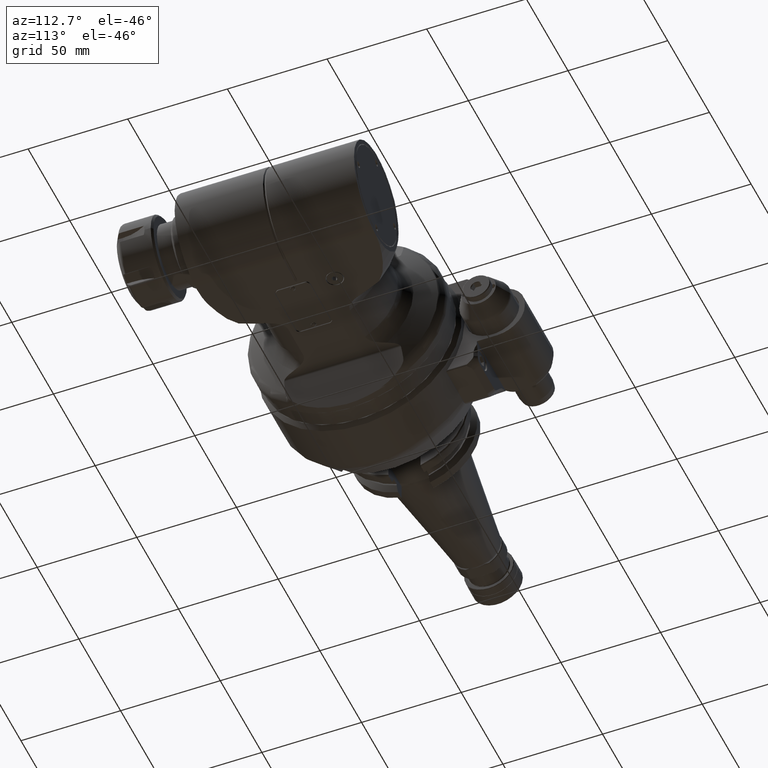
[diagram: clean part render]
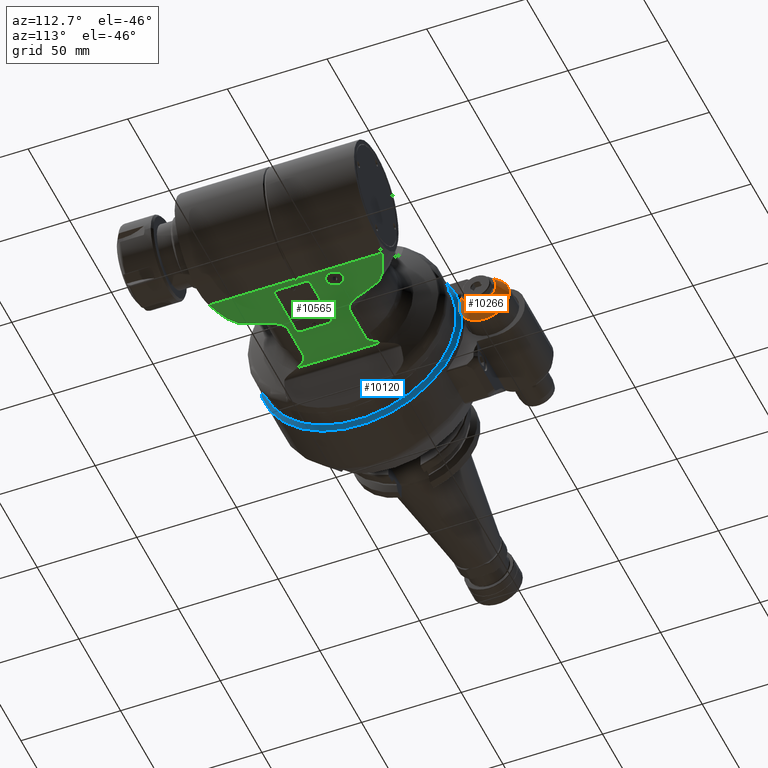
[diagram: same view with three faces highlighted in distinct colors, each labeled with its STEP entity id]
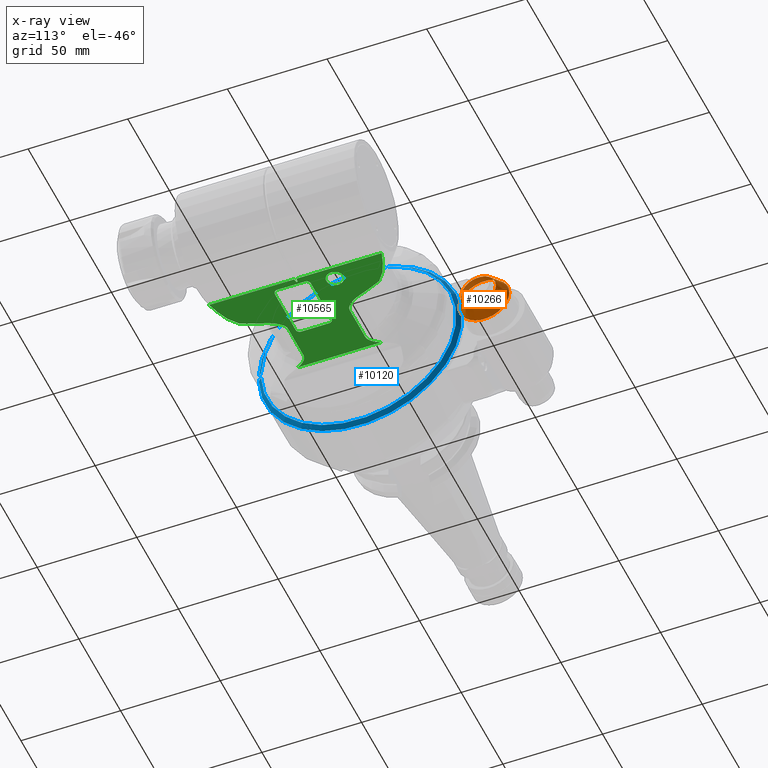
[diagram: x-ray of the same camera — body ghosted, the three highlighted faces saturated]
A machine part, auxiliary view with three faces highlighted in distinct colors.
The next image is the same camera in x-ray (body ghosted, the three faces saturated) — at least one of them is partly hidden behind the body in this view.
Their STEP definitions:

[orange] entity #10266 — the highlighted conical surface has half-angle 30 deg.
#688=CONICAL_SURFACE('',#11068,10.63397459622,0.523598775598299);
#944=FACE_OUTER_BOUND('',#1598,.T.);
#1598=EDGE_LOOP('',(#7572,#7573,#7574,#7575));
#2245=CIRCLE('',#11067,12.59807621135);
#2246=CIRCLE('',#11069,8.669872981078);
#3060=LINE('',#16064,#3718);
#3718=VECTOR('',#12654,10.63397459622);
#4428=VERTEX_POINT('',#16059);
#4429=VERTEX_POINT('',#16063);
#5596=EDGE_CURVE('',#4428,#4428,#2245,.T.);
#5597=EDGE_CURVE('',#4428,#4429,#3060,.T.);
#5598=EDGE_CURVE('',#4429,#4429,#2246,.T.);
#7572=ORIENTED_EDGE('',*,*,#5596,.F.);
#7573=ORIENTED_EDGE('',*,*,#5597,.T.);
#7574=ORIENTED_EDGE('',*,*,#5598,.F.);
#7575=ORIENTED_EDGE('',*,*,#5597,.F.);
#10266=ADVANCED_FACE('',(#944),#688,.T.);
#11067=AXIS2_PLACEMENT_3D('',#16061,#12650,#12651);
#11068=AXIS2_PLACEMENT_3D('',#16062,#12652,#12653);
#11069=AXIS2_PLACEMENT_3D('',#16065,#12655,#12656);
#12650=DIRECTION('center_axis',(-1.,0.,0.));
#12651=DIRECTION('ref_axis',(0.,1.,0.));
#12652=DIRECTION('center_axis',(-1.,0.,0.));
#12653=DIRECTION('ref_axis',(0.,-1.,0.));
#12654=DIRECTION('',(0.866025403784439,-0.5,6.12323399573676E-17));
#12655=DIRECTION('center_axis',(1.,0.,0.));
#12656=DIRECTION('ref_axis',(0.,-1.,0.));
#16059=CARTESIAN_POINT('',(-7.303847577293,77.59807621135,0.));
#16061=CARTESIAN_POINT('Origin',(-7.303847577293,65.,0.));
#16062=CARTESIAN_POINT('Origin',(-3.901923788647,65.,0.));
#16063=CARTESIAN_POINT('',(-0.5,73.66987298108,0.));
#16064=CARTESIAN_POINT('',(-3.901923788647,75.63397459622,-1.30228629514751E-15));
#16065=CARTESIAN_POINT('Origin',(-0.5,65.,0.));

[blue] entity #10120 — the highlighted conical surface has half-angle 45 deg.
#223=(
BOUNDED_CURVE()
B_SPLINE_CURVE(2,(#14953,#14954,#14955),.UNSPECIFIED.,.F.,.F.)
B_SPLINE_CURVE_WITH_KNOTS((3,3),(-0.564591459525085,-0.191486343836374),
 .UNSPECIFIED.)
CURVE()
GEOMETRIC_REPRESENTATION_ITEM()
RATIONAL_B_SPLINE_CURVE((1.00850972307627,1.00599717540352,1.00308912932))
REPRESENTATION_ITEM('')
);
#224=(
BOUNDED_CURVE()
B_SPLINE_CURVE(2,(#14958,#14959,#14960),.UNSPECIFIED.,.F.,.F.)
B_SPLINE_CURVE_WITH_KNOTS((3,3),(-5.67826879781681,-5.3051636821038),
 .UNSPECIFIED.)
CURVE()
GEOMETRIC_REPRESENTATION_ITEM()
RATIONAL_B_SPLINE_CURVE((1.00308912932,1.00599717540371,1.00850972307659))
REPRESENTATION_ITEM('')
);
#669=CONICAL_SURFACE('',#10820,50.,0.785398163397448);
#798=FACE_OUTER_BOUND('',#1431,.T.);
#1431=EDGE_LOOP('',(#6829,#6830,#6831,#6832));
#2139=CIRCLE('',#10815,51.);
#2144=CIRCLE('',#10821,49.);
#4190=VERTEX_POINT('',#14882);
#4191=VERTEX_POINT('',#14883);
#4197=VERTEX_POINT('',#14952);
#4198=VERTEX_POINT('',#14956);
#5227=EDGE_CURVE('',#4190,#4191,#2139,.T.);
#5237=EDGE_CURVE('',#4191,#4197,#223,.T.);
#5238=EDGE_CURVE('',#4198,#4197,#2144,.T.);
#5239=EDGE_CURVE('',#4198,#4190,#224,.T.);
#6829=ORIENTED_EDGE('',*,*,#5227,.T.);
#6830=ORIENTED_EDGE('',*,*,#5237,.T.);
#6831=ORIENTED_EDGE('',*,*,#5238,.F.);
#6832=ORIENTED_EDGE('',*,*,#5239,.T.);
#10120=ADVANCED_FACE('',(#798),#669,.T.);
#10815=AXIS2_PLACEMENT_3D('',#14884,#11951,#11952);
#10820=AXIS2_PLACEMENT_3D('',#14951,#11963,#11964);
#10821=AXIS2_PLACEMENT_3D('',#14957,#11965,#11966);
#11951=DIRECTION('center_axis',(1.,0.,0.));
#11952=DIRECTION('ref_axis',(0.,1.,0.));
#11963=DIRECTION('center_axis',(-1.,0.,0.));
#11964=DIRECTION('ref_axis',(0.,1.,0.));
#11965=DIRECTION('center_axis',(1.,0.,0.));
#11966=DIRECTION('ref_axis',(0.,1.,0.));
#14882=CARTESIAN_POINT('',(-14.,-50.9779364039,-1.5));
#14883=CARTESIAN_POINT('',(-14.,-50.9779364039,1.5));
#14884=CARTESIAN_POINT('Origin',(-14.,0.,0.));
#14951=CARTESIAN_POINT('Origin',(-13.,0.,0.));
#14952=CARTESIAN_POINT('',(-12.,-48.97703543499,1.5));
#14953=CARTESIAN_POINT('Ctrl Pts',(-14.0000000000021,-50.9779364038979,
1.5));
#14954=CARTESIAN_POINT('Ctrl Pts',(-12.9799819768498,-49.9574769100383,
1.5));
#14955=CARTESIAN_POINT('Ctrl Pts',(-12.0000000000021,-48.9770354349879,
1.5));
#14956=CARTESIAN_POINT('',(-12.,-48.97703543499,-1.5));
#14957=CARTESIAN_POINT('Origin',(-12.,0.,0.));
#14958=CARTESIAN_POINT('Ctrl Pts',(-12.0000000000021,-48.9770354349879,
-1.5));
#14959=CARTESIAN_POINT('Ctrl Pts',(-12.9799819769135,-49.957476910102,-1.5));
#14960=CARTESIAN_POINT('Ctrl Pts',(-14.0000000001347,-50.9779364040305,
-1.5));

[green] entity #10565 — the highlighted planar face has unit normal (0, -0, 1).
#195=FACE_BOUND('',#1928,.T.);
#196=FACE_BOUND('',#1929,.T.);
#344=(
BOUNDED_CURVE()
B_SPLINE_CURVE(2,(#55375,#55376,#55377),.UNSPECIFIED.,.F.,.F.)
B_SPLINE_CURVE_WITH_KNOTS((3,3),(2.12423992487181,3.54863226024136),
 .UNSPECIFIED.)
CURVE()
GEOMETRIC_REPRESENTATION_ITEM()
RATIONAL_B_SPLINE_CURVE((1.40912553974093,1.52349322192342,1.60728382082334))
REPRESENTATION_ITEM('')
);
#360=(
BOUNDED_CURVE()
B_SPLINE_CURVE(2,(#55586,#55587,#55588),.UNSPECIFIED.,.F.,.F.)
B_SPLINE_CURVE_WITH_KNOTS((3,3),(5.91107555423709,6.53511731414519),
 .UNSPECIFIED.)
CURVE()
GEOMETRIC_REPRESENTATION_ITEM()
RATIONAL_B_SPLINE_CURVE((2.83542029122629,2.86424913789588,2.87870857148112))
REPRESENTATION_ITEM('')
);
#361=(
BOUNDED_CURVE()
B_SPLINE_CURVE(2,(#55623,#55624,#55625),.UNSPECIFIED.,.F.,.F.)
B_SPLINE_CURVE_WITH_KNOTS((3,3),(-3.54863226084856,-2.12423992536637),
 .UNSPECIFIED.)
CURVE()
GEOMETRIC_REPRESENTATION_ITEM()
RATIONAL_B_SPLINE_CURVE((1.60728382094121,1.52349322203514,1.40912553984427))
REPRESENTATION_ITEM('')
);
#362=(
BOUNDED_CURVE()
B_SPLINE_CURVE(2,(#55627,#55628,#55629),.UNSPECIFIED.,.F.,.F.)
B_SPLINE_CURVE_WITH_KNOTS((3,3),(-1.06197990539254,-0.715484187069296),
 .UNSPECIFIED.)
CURVE()
GEOMETRIC_REPRESENTATION_ITEM()
RATIONAL_B_SPLINE_CURVE((1.1475996023373,1.1256416069715,1.10229961796947))
REPRESENTATION_ITEM('')
);
#363=(
BOUNDED_CURVE()
B_SPLINE_CURVE(2,(#55631,#55632,#55633),.UNSPECIFIED.,.F.,.F.)
B_SPLINE_CURVE_WITH_KNOTS((3,3),(-0.973706178312566,-0.526025533674463),
 .UNSPECIFIED.)
CURVE()
GEOMETRIC_REPRESENTATION_ITEM()
RATIONAL_B_SPLINE_CURVE((1.01555771134693,1.01265149021232,1.00912893726433))
REPRESENTATION_ITEM('')
);
#364=(
BOUNDED_CURVE()
B_SPLINE_CURVE(2,(#55635,#55636,#55637),.UNSPECIFIED.,.F.,.F.)
B_SPLINE_CURVE_WITH_KNOTS((3,3),(-0.576339078705369,-0.109398499019549),
 .UNSPECIFIED.)
CURVE()
GEOMETRIC_REPRESENTATION_ITEM()
RATIONAL_B_SPLINE_CURVE((1.00432743023104,1.00276695364821,1.00089450715669))
REPRESENTATION_ITEM('')
);
#365=(
BOUNDED_CURVE()
B_SPLINE_CURVE(2,(#55659,#55660,#55661),.UNSPECIFIED.,.F.,.F.)
B_SPLINE_CURVE_WITH_KNOTS((3,3),(-6.53511731431904,-5.91107555423699),
 .UNSPECIFIED.)
CURVE()
GEOMETRIC_REPRESENTATION_ITEM()
RATIONAL_B_SPLINE_CURVE((2.8787085714891,2.86424913790384,2.83542029122622))
REPRESENTATION_ITEM('')
);
#366=(
BOUNDED_CURVE()
B_SPLINE_CURVE(2,(#55667,#55668,#55669),.UNSPECIFIED.,.F.,.F.)
B_SPLINE_CURVE_WITH_KNOTS((3,3),(-5.71456249601488,-5.24762191632828),
 .UNSPECIFIED.)
CURVE()
GEOMETRIC_REPRESENTATION_ITEM()
RATIONAL_B_SPLINE_CURVE((1.000894507157,1.00276695364851,1.00432743023132))
REPRESENTATION_ITEM('')
);
#367=(
BOUNDED_CURVE()
B_SPLINE_CURVE(2,(#55671,#55672,#55673),.UNSPECIFIED.,.F.,.F.)
B_SPLINE_CURVE_WITH_KNOTS((3,3),(-5.64333001251078,-5.1956493678714),
 .UNSPECIFIED.)
CURVE()
GEOMETRIC_REPRESENTATION_ITEM()
RATIONAL_B_SPLINE_CURVE((1.00912893726492,1.01265149021289,1.01555771134748))
REPRESENTATION_ITEM('')
);
#368=(
BOUNDED_CURVE()
B_SPLINE_CURVE(2,(#55674,#55675,#55676),.UNSPECIFIED.,.F.,.F.)
B_SPLINE_CURVE_WITH_KNOTS((3,3),(-12.4032536025677,-12.0567578842427),
 .UNSPECIFIED.)
CURVE()
GEOMETRIC_REPRESENTATION_ITEM()
RATIONAL_B_SPLINE_CURVE((1.10229961797324,1.12564160697536,1.14759960234123))
REPRESENTATION_ITEM('')
);
#597=PLANE('',#11563);
#1243=FACE_OUTER_BOUND('',#1927,.T.);
#1927=EDGE_LOOP('',(#9097,#9098,#9099,#9100,#9101,#9102,#9103,#9104,#9105,
#9106,#9107,#9108,#9109,#9110,#9111,#9112,#9113,#9114,#9115,#9116,#9117,
#9118));
#1928=EDGE_LOOP('',(#9119));
#1929=EDGE_LOOP('',(#9120,#9121,#9122,#9123,#9124,#9125,#9126,#9127));
#2472=CIRCLE('',#11564,4.25);
#2473=CIRCLE('',#11565,2.);
#2474=CIRCLE('',#11566,2.);
#2475=CIRCLE('',#11567,2.);
#2476=CIRCLE('',#11568,2.);
#2808=B_SPLINE_CURVE_WITH_KNOTS('',3,(#55340,#55341,#55342,#55343,#55344,
#55345,#55346,#55347,#55348,#55349,#55350,#55351),.UNSPECIFIED.,.F.,.F.,
(4,2,2,2,2,4),(-2.93602857360432,-2.81022163538033,-2.66127008993984,-2.44574033067297,
-2.2302105714061,-2.12135907273542),.UNSPECIFIED.);
#2809=B_SPLINE_CURVE_WITH_KNOTS('',3,(#55359,#55360,#55361,#55362,#55363,
#55364,#55365,#55366,#55367,#55368,#55369,#55370,#55371,#55372),
 .UNSPECIFIED.,.F.,.F.,(4,2,2,2,2,2,4),(-3.9243895348401,-3.85672178121539,
-3.6417920743864,-3.42626231511953,-3.21073255585266,-3.06178101041217,
-2.93597407218818),.UNSPECIFIED.);
#2818=B_SPLINE_CURVE_WITH_KNOTS('',3,(#55593,#55594,#55595,#55596,#55597,
#55598,#55599,#55600,#55601,#55602,#55603,#55604),.UNSPECIFIED.,.F.,.F.,
(4,2,2,2,2,4),(2.12339512886387,2.32994567883634,2.51186335157645,2.69378102431655,
2.82337724519285,2.93597407218818),.UNSPECIFIED.);
#2819=B_SPLINE_CURVE_WITH_KNOTS('',3,(#55608,#55609,#55610,#55611,#55612,
#55613,#55614,#55615,#55616,#55617,#55618,#55619,#55620,#55621),
 .UNSPECIFIED.,.F.,.F.,(4,2,2,2,2,2,4),(2.93597407218818,3.04857089918351,
3.17816712005981,3.36008479279991,3.54200246554002,3.77852981809237,3.92307824233879),
 .UNSPECIFIED.);
#2820=B_SPLINE_CURVE_WITH_KNOTS('',3,(#55640,#55641,#55642,#55643,#55644,
#55645,#55646,#55647,#55648,#55649,#55650,#55651,#55652,#55653,#55654,#55655,
#55656,#55657),.UNSPECIFIED.,.F.,.F.,(4,2,2,2,2,2,2,2,4),(1.07151663617923,
1.09324356313691,1.11216026242346,1.11735936317211,1.12158336061007,1.12580735804802,
1.13100645879667,1.14992315808322,1.17165008504091),.UNSPECIFIED.);
#3344=LINE('',#55354,#4002);
#3351=LINE('',#55570,#4009);
#3356=LINE('',#55591,#4014);
#3357=LINE('',#55606,#4015);
#3358=LINE('',#55638,#4016);
#3359=LINE('',#55663,#4017);
#3360=LINE('',#55665,#4018);
#3361=LINE('',#55681,#4019);
#3362=LINE('',#55685,#4020);
#3363=LINE('',#55689,#4021);
#3364=LINE('',#55693,#4022);
#4002=VECTOR('',#13870,18.39109797347);
#4009=VECTOR('',#13925,42.6337666201003);
#4014=VECTOR('',#13940,41.77019528661);
#4015=VECTOR('',#13941,18.39109797347);
#4016=VECTOR('',#13942,10.);
#4017=VECTOR('',#13943,42.6337666199103);
#4018=VECTOR('',#13944,10.);
#4019=VECTOR('',#13947,25.);
#4020=VECTOR('',#13950,14.);
#4021=VECTOR('',#13953,25.);
#4022=VECTOR('',#13956,14.);
#4915=VERTEX_POINT('',#55329);
#4917=VERTEX_POINT('',#55333);
#4918=VERTEX_POINT('',#55353);
#4919=VERTEX_POINT('',#55357);
#4920=VERTEX_POINT('',#55374);
#4953=VERTEX_POINT('',#55567);
#4954=VERTEX_POINT('',#55569);
#4958=VERTEX_POINT('',#55584);
#4959=VERTEX_POINT('',#55590);
#4960=VERTEX_POINT('',#55592);
#4961=VERTEX_POINT('',#55605);
#4962=VERTEX_POINT('',#55607);
#4963=VERTEX_POINT('',#55622);
#4964=VERTEX_POINT('',#55626);
#4965=VERTEX_POINT('',#55630);
#4966=VERTEX_POINT('',#55634);
#4967=VERTEX_POINT('',#55639);
#4968=VERTEX_POINT('',#55658);
#4969=VERTEX_POINT('',#55662);
#4970=VERTEX_POINT('',#55664);
#4971=VERTEX_POINT('',#55666);
#4972=VERTEX_POINT('',#55670);
#4973=VERTEX_POINT('',#55677);
#4974=VERTEX_POINT('',#55679);
#4975=VERTEX_POINT('',#55680);
#4976=VERTEX_POINT('',#55682);
#4977=VERTEX_POINT('',#55684);
#4978=VERTEX_POINT('',#55686);
#4979=VERTEX_POINT('',#55688);
#4980=VERTEX_POINT('',#55690);
#4981=VERTEX_POINT('',#55692);
#6337=EDGE_CURVE('',#4915,#4917,#2808,.T.);
#6338=EDGE_CURVE('',#4915,#4918,#3344,.T.);
#6341=EDGE_CURVE('',#4919,#4918,#2809,.T.);
#6342=EDGE_CURVE('',#4920,#4919,#344,.T.);
#6383=EDGE_CURVE('',#4953,#4954,#3351,.T.);
#6391=EDGE_CURVE('',#4958,#4953,#360,.T.);
#6392=EDGE_CURVE('',#4959,#4917,#3356,.T.);
#6393=EDGE_CURVE('',#4959,#4960,#2818,.T.);
#6394=EDGE_CURVE('',#4961,#4960,#3357,.T.);
#6395=EDGE_CURVE('',#4961,#4962,#2819,.T.);
#6396=EDGE_CURVE('',#4962,#4963,#361,.T.);
#6397=EDGE_CURVE('',#4963,#4964,#362,.T.);
#6398=EDGE_CURVE('',#4964,#4965,#363,.T.);
#6399=EDGE_CURVE('',#4965,#4966,#364,.T.);
#6400=EDGE_CURVE('',#4966,#4954,#3358,.T.);
#6401=EDGE_CURVE('',#4967,#4958,#2820,.F.);
#6402=EDGE_CURVE('',#4968,#4967,#365,.T.);
#6403=EDGE_CURVE('',#4969,#4968,#3359,.T.);
#6404=EDGE_CURVE('',#4969,#4970,#3360,.T.);
#6405=EDGE_CURVE('',#4970,#4971,#366,.T.);
#6406=EDGE_CURVE('',#4971,#4972,#367,.T.);
#6407=EDGE_CURVE('',#4972,#4920,#368,.T.);
#6408=EDGE_CURVE('',#4973,#4973,#2472,.T.);
#6409=EDGE_CURVE('',#4974,#4975,#3361,.T.);
#6410=EDGE_CURVE('',#4975,#4976,#2473,.T.);
#6411=EDGE_CURVE('',#4976,#4977,#3362,.T.);
#6412=EDGE_CURVE('',#4977,#4978,#2474,.T.);
#6413=EDGE_CURVE('',#4978,#4979,#3363,.T.);
#6414=EDGE_CURVE('',#4979,#4980,#2475,.T.);
#6415=EDGE_CURVE('',#4980,#4981,#3364,.T.);
#6416=EDGE_CURVE('',#4981,#4974,#2476,.T.);
#9097=ORIENTED_EDGE('',*,*,#6392,.F.);
#9098=ORIENTED_EDGE('',*,*,#6393,.T.);
#9099=ORIENTED_EDGE('',*,*,#6394,.F.);
#9100=ORIENTED_EDGE('',*,*,#6395,.T.);
#9101=ORIENTED_EDGE('',*,*,#6396,.T.);
#9102=ORIENTED_EDGE('',*,*,#6397,.T.);
#9103=ORIENTED_EDGE('',*,*,#6398,.T.);
#9104=ORIENTED_EDGE('',*,*,#6399,.T.);
#9105=ORIENTED_EDGE('',*,*,#6400,.T.);
#9106=ORIENTED_EDGE('',*,*,#6383,.F.);
#9107=ORIENTED_EDGE('',*,*,#6391,.F.);
#9108=ORIENTED_EDGE('',*,*,#6401,.F.);
#9109=ORIENTED_EDGE('',*,*,#6402,.F.);
#9110=ORIENTED_EDGE('',*,*,#6403,.F.);
#9111=ORIENTED_EDGE('',*,*,#6404,.T.);
#9112=ORIENTED_EDGE('',*,*,#6405,.T.);
#9113=ORIENTED_EDGE('',*,*,#6406,.T.);
#9114=ORIENTED_EDGE('',*,*,#6407,.T.);
#9115=ORIENTED_EDGE('',*,*,#6342,.T.);
#9116=ORIENTED_EDGE('',*,*,#6341,.T.);
#9117=ORIENTED_EDGE('',*,*,#6338,.F.);
#9118=ORIENTED_EDGE('',*,*,#6337,.T.);
#9119=ORIENTED_EDGE('',*,*,#6408,.T.);
#9120=ORIENTED_EDGE('',*,*,#6409,.T.);
#9121=ORIENTED_EDGE('',*,*,#6410,.T.);
#9122=ORIENTED_EDGE('',*,*,#6411,.T.);
#9123=ORIENTED_EDGE('',*,*,#6412,.T.);
#9124=ORIENTED_EDGE('',*,*,#6413,.T.);
#9125=ORIENTED_EDGE('',*,*,#6414,.T.);
#9126=ORIENTED_EDGE('',*,*,#6415,.T.);
#9127=ORIENTED_EDGE('',*,*,#6416,.T.);
#10565=ADVANCED_FACE('',(#1243,#195,#196),#597,.F.);
#11563=AXIS2_PLACEMENT_3D('',#55589,#13938,#13939);
#11564=AXIS2_PLACEMENT_3D('',#55678,#13945,#13946);
#11565=AXIS2_PLACEMENT_3D('',#55683,#13948,#13949);
#11566=AXIS2_PLACEMENT_3D('',#55687,#13951,#13952);
#11567=AXIS2_PLACEMENT_3D('',#55691,#13954,#13955);
#11568=AXIS2_PLACEMENT_3D('',#55694,#13957,#13958);
#13870=DIRECTION('',(1.,0.,0.));
#13925=DIRECTION('',(-1.18254196576499E-7,0.999999999999993,-8.79004707197494E-10));
#13938=DIRECTION('center_axis',(0.,0.,1.));
#13939=DIRECTION('ref_axis',(-1.,0.,0.));
#13940=DIRECTION('',(-6.302486301364E-14,-1.,0.));
#13941=DIRECTION('',(-1.,0.,0.));
#13942=DIRECTION('',(0.986272311732802,0.165127002968124,0.));
#13943=DIRECTION('',(1.18262933663999E-7,0.999999999999993,8.78708382226194E-10));
#13944=DIRECTION('',(-0.98627231173195,0.165127002973213,0.));
#13945=DIRECTION('center_axis',(0.,0.,1.));
#13946=DIRECTION('ref_axis',(0.,-1.,0.));
#13947=DIRECTION('',(1.,0.,0.));
#13948=DIRECTION('center_axis',(0.,0.,1.));
#13949=DIRECTION('ref_axis',(0.,-1.,0.));
#13950=DIRECTION('',(0.,1.,0.));
#13951=DIRECTION('center_axis',(0.,0.,1.));
#13952=DIRECTION('ref_axis',(1.,-3.10862446895E-13,0.));
#13953=DIRECTION('',(-1.,0.,0.));
#13954=DIRECTION('center_axis',(0.,0.,1.));
#13955=DIRECTION('ref_axis',(-4.263256414561E-14,1.,0.));
#13956=DIRECTION('',(0.,-1.,0.));
#13957=DIRECTION('center_axis',(0.,0.,1.));
#13958=DIRECTION('ref_axis',(-1.,-3.392841563254E-13,0.));
#55329=CARTESIAN_POINT('',(32.99009987301,-15.49193338483,-28.));
#55333=CARTESIAN_POINT('',(26.80083020092,-20.88509764331,-28.));
#55340=CARTESIAN_POINT('Ctrl Pts',(32.99009987301,-15.4919333848297,-28.));
#55341=CARTESIAN_POINT('Ctrl Pts',(32.5707434122634,-15.4919333848297,-28.));
#55342=CARTESIAN_POINT('Ctrl Pts',(32.0752042743193,-15.5795640532649,-28.));
#55343=CARTESIAN_POINT('Ctrl Pts',(31.2080074002573,-15.8741350537825,-28.));
#55344=CARTESIAN_POINT('Ctrl Pts',(30.6847533920019,-16.1590740807169,-28.));
#55345=CARTESIAN_POINT('Ctrl Pts',(29.69452279622,-16.8630037215125,-28.));
#55346=CARTESIAN_POINT('Ctrl Pts',(29.1325458604225,-17.407552366296,-28.));
#55347=CARTESIAN_POINT('Ctrl Pts',(28.1323512917126,-18.608539452852,-28.));
#55348=CARTESIAN_POINT('Ctrl Pts',(27.6932483097344,-19.2642402902718,-28.));
#55349=CARTESIAN_POINT('Ctrl Pts',(27.1514292838462,-20.1999639756728,-28.));
#55350=CARTESIAN_POINT('Ctrl Pts',(26.9719387319417,-20.5356509781966,-28.));
#55351=CARTESIAN_POINT('Ctrl Pts',(26.8008302009176,-20.8850976433088,-28.));
#55353=CARTESIAN_POINT('',(51.38119784648,-15.49193338483,-28.));
#55354=CARTESIAN_POINT('',(32.99009987301,-15.49193338483,-28.));
#55357=CARTESIAN_POINT('',(58.30940107676,-22.62741699797,-28.));
#55359=CARTESIAN_POINT('Ctrl Pts',(58.3094010767562,-22.6274169979714,-28.));
#55360=CARTESIAN_POINT('Ctrl Pts',(58.2258006286174,-22.3970412527373,-28.));
#55361=CARTESIAN_POINT('Ctrl Pts',(58.1367913893094,-22.1663840201593,-28.));
#55362=CARTESIAN_POINT('Ctrl Pts',(57.7451812007965,-21.2114016502261,-28.));
#55363=CARTESIAN_POINT('Ctrl Pts',(57.3970525053331,-20.5059615925195,-28.));
#55364=CARTESIAN_POINT('Ctrl Pts',(56.6780494097556,-19.2642402902718,-28.));
#55365=CARTESIAN_POINT('Ctrl Pts',(56.2389464277774,-18.6085394528521,-28.));
#55366=CARTESIAN_POINT('Ctrl Pts',(55.2387518590675,-17.407552366296,-28.));
#55367=CARTESIAN_POINT('Ctrl Pts',(54.67677492327,-16.8630037215125,-28.));
#55368=CARTESIAN_POINT('Ctrl Pts',(53.6865443274882,-16.1590740807169,-28.));
#55369=CARTESIAN_POINT('Ctrl Pts',(53.1632903192327,-15.8741350537825,-28.));
#55370=CARTESIAN_POINT('Ctrl Pts',(52.2960934451707,-15.5795640532649,-28.));
#55371=CARTESIAN_POINT('Ctrl Pts',(51.8005543072266,-15.4919333848297,-28.));
#55372=CARTESIAN_POINT('Ctrl Pts',(51.38119784648,-15.4919333848297,-28.));
#55374=CARTESIAN_POINT('',(63.5055535659187,-35.2278300212327,-27.9999999663191));
#55375=CARTESIAN_POINT('Ctrl Pts',(63.505553553386,-35.227830026922,-28.));
#55376=CARTESIAN_POINT('Ctrl Pts',(60.3416369571629,-28.2276005599365,-28.));
#55377=CARTESIAN_POINT('Ctrl Pts',(58.3094010767572,-22.627416997971,-28.));
#55567=CARTESIAN_POINT('',(79.7487916142378,0.647955160126924,-27.9999999146753));
#55569=CARTESIAN_POINT('',(79.7487867022404,43.2817206299215,-28.0000001818403));
#55570=CARTESIAN_POINT('',(79.74879163145,0.6479548681258,-27.9999999631));
#55584=CARTESIAN_POINT('',(78.01178138535,0.2828427124826,-28.));
#55586=CARTESIAN_POINT('Ctrl Pts',(78.011781385352,0.282842712484966,-28.));
#55587=CARTESIAN_POINT('Ctrl Pts',(78.8932821755777,0.527225499016974,-28.));
#55588=CARTESIAN_POINT('Ctrl Pts',(79.7487915991153,0.647955267286797,-28.));
#55589=CARTESIAN_POINT('Origin',(60.963057,-60.0000024,-28.));
#55590=CARTESIAN_POINT('',(26.80083020092,20.8850976433,-28.));
#55591=CARTESIAN_POINT('',(26.80083020092,20.8850976433,-28.));
#55592=CARTESIAN_POINT('',(32.99009987301,15.49193338483,-28.));
#55593=CARTESIAN_POINT('Ctrl Pts',(26.8008302009215,20.8850976433008,-28.));
#55594=CARTESIAN_POINT('Ctrl Pts',(27.1316615895168,20.2094567224948,-28.));
#55595=CARTESIAN_POINT('Ctrl Pts',(27.5057921799281,19.5634036381966,-28.));
#55596=CARTESIAN_POINT('Ctrl Pts',(28.233192022949,18.4921239661789,-28.));
#55597=CARTESIAN_POINT('Ctrl Pts',(28.6408811523053,17.9652022129463,-28.));
#55598=CARTESIAN_POINT('Ctrl Pts',(29.550628761613,17.0081024201193,-28.));
#55599=CARTESIAN_POINT('Ctrl Pts',(30.053798895377,16.5789816504194,-28.));
#55600=CARTESIAN_POINT('Ctrl Pts',(30.9310586317008,16.0234209939819,-28.));
#55601=CARTESIAN_POINT('Ctrl Pts',(31.3977248933945,15.7977099228234,-28.));
#55602=CARTESIAN_POINT('Ctrl Pts',(32.1698889724911,15.5620993782773,-28.));
#55603=CARTESIAN_POINT('Ctrl Pts',(32.6147771163589,15.4919333848297,-28.));
#55604=CARTESIAN_POINT('Ctrl Pts',(32.99009987301,15.4919333848297,-28.));
#55605=CARTESIAN_POINT('',(51.38119784648,15.49193338483,-28.));
#55606=CARTESIAN_POINT('',(51.38119784648,15.49193338483,-28.));
#55607=CARTESIAN_POINT('',(58.30940107676,22.62741699797,-28.));
#55608=CARTESIAN_POINT('Ctrl Pts',(51.38119784648,15.4919333848297,-28.));
#55609=CARTESIAN_POINT('Ctrl Pts',(51.7565206031311,15.4919333848297,-28.));
#55610=CARTESIAN_POINT('Ctrl Pts',(52.201408746999,15.5620993782773,-28.));
#55611=CARTESIAN_POINT('Ctrl Pts',(52.9735728260955,15.7977099228234,-28.));
#55612=CARTESIAN_POINT('Ctrl Pts',(53.4402390877892,16.0234209939819,-28.));
#55613=CARTESIAN_POINT('Ctrl Pts',(54.317498824113,16.5789816504194,-28.));
#55614=CARTESIAN_POINT('Ctrl Pts',(54.8206689578771,17.0081024201193,-28.));
#55615=CARTESIAN_POINT('Ctrl Pts',(55.7304165671847,17.9652022129463,-28.));
#55616=CARTESIAN_POINT('Ctrl Pts',(56.138105696541,18.492123966179,-28.));
#55617=CARTESIAN_POINT('Ctrl Pts',(56.9216365696334,19.6460707325903,-28.));
#55618=CARTESIAN_POINT('Ctrl Pts',(57.3473059591154,20.3989143849032,-28.));
#55619=CARTESIAN_POINT('Ctrl Pts',(57.9345741249346,21.6588360308127,-28.));
#55620=CARTESIAN_POINT('Ctrl Pts',(58.1351990449167,22.1473726465381,-28.));
#55621=CARTESIAN_POINT('Ctrl Pts',(58.3094010767562,22.6274169979714,-28.));
#55622=CARTESIAN_POINT('',(63.5055535659185,35.2278300212323,-27.9999999663193));
#55623=CARTESIAN_POINT('Ctrl Pts',(58.3094010767572,22.627416997971,-28.));
#55624=CARTESIAN_POINT('Ctrl Pts',(60.3416369571628,28.2276005599363,-28.));
#55625=CARTESIAN_POINT('Ctrl Pts',(63.5055535533858,35.2278300269216,-28.));
#55626=CARTESIAN_POINT('',(68.3065571930034,38.9871774622734,-27.9999999732515));
#55627=CARTESIAN_POINT('Ctrl Pts',(63.5055535954656,35.2278299842427,-28.));
#55628=CARTESIAN_POINT('Ctrl Pts',(65.7844584198845,37.0468690861539,-28.));
#55629=CARTESIAN_POINT('Ctrl Pts',(68.3065571937107,38.987177461645,-28.));
#55630=CARTESIAN_POINT('',(73.8015119777605,41.4246303801346,-27.9999999913744));
#55631=CARTESIAN_POINT('Ctrl Pts',(68.3065572062823,38.9871774328733,-28.));
#55632=CARTESIAN_POINT('Ctrl Pts',(70.9707527086018,40.181031936849,-28.));
#55633=CARTESIAN_POINT('Ctrl Pts',(73.8015119788238,41.4246303778443,-28.));
#55634=CARTESIAN_POINT('',(79.3995881405208,43.2232573114263,-28.0000000623146));
#55635=CARTESIAN_POINT('Ctrl Pts',(73.8015119803786,41.4246303721669,-28.));
#55636=CARTESIAN_POINT('Ctrl Pts',(76.541075098463,42.310653637463,-28.));
#55637=CARTESIAN_POINT('Ctrl Pts',(79.3995880483832,43.2232576000296,-28.));
#55638=CARTESIAN_POINT('',(79.39960760371,43.22326006861,-28.));
#55639=CARTESIAN_POINT('',(78.01178138535,-0.2828427124825,-28.));
#55640=CARTESIAN_POINT('Ctrl Pts',(78.01178138535,0.28284271248263,-28.));
#55641=CARTESIAN_POINT('Ctrl Pts',(77.9402997186599,0.263025499515388,-28.));
#55642=CARTESIAN_POINT('Ctrl Pts',(77.8710635313814,0.239547008562765,-28.));
#55643=CARTESIAN_POINT('Ctrl Pts',(77.7489142605278,0.180946253829771,-28.));
#55644=CARTESIAN_POINT('Ctrl Pts',(77.6842446087927,0.141661392434833,-28.));
#55645=CARTESIAN_POINT('Ctrl Pts',(77.6349852143793,0.078136428232651,-28.));
#55646=CARTESIAN_POINT('Ctrl Pts',(77.6244072569412,0.0602312001148051,
-28.));
#55647=CARTESIAN_POINT('Ctrl Pts',(77.6137442953691,0.0306861512758798,
-28.));
#55648=CARTESIAN_POINT('Ctrl Pts',(77.6106282199756,0.0140799914598507,
-28.));
#55649=CARTESIAN_POINT('Ctrl Pts',(77.6106282199756,-0.0140799914598507,
-28.));
#55650=CARTESIAN_POINT('Ctrl Pts',(77.6137442953691,-0.0306861512758798,
-28.));
#55651=CARTESIAN_POINT('Ctrl Pts',(77.6244072569412,-0.0602312001148051,
-28.));
#55652=CARTESIAN_POINT('Ctrl Pts',(77.6349852143793,-0.078136428232651,
-28.));
#55653=CARTESIAN_POINT('Ctrl Pts',(77.6842446087927,-0.141661392434833,
-28.));
#55654=CARTESIAN_POINT('Ctrl Pts',(77.7489142605278,-0.180946253829771,
-28.));
#55655=CARTESIAN_POINT('Ctrl Pts',(77.8710635313814,-0.239547008562761,
-28.));
#55656=CARTESIAN_POINT('Ctrl Pts',(77.9402997186599,-0.263025499515375,
-28.));
#55657=CARTESIAN_POINT('Ctrl Pts',(78.01178138535,-0.282842712482618,-28.));
#55658=CARTESIAN_POINT('',(79.7487916147076,-0.647955160228884,-27.9999999147063));
#55659=CARTESIAN_POINT('Ctrl Pts',(79.7487915995904,-0.647955267351726,
-28.));
#55660=CARTESIAN_POINT('Ctrl Pts',(78.8932821758214,-0.527225499082401,
-28.));
#55661=CARTESIAN_POINT('Ctrl Pts',(78.0117813853525,-0.282842712482982,
-28.));
#55662=CARTESIAN_POINT('',(79.7487867023352,-43.2817206299328,-28.0000001818392));
#55663=CARTESIAN_POINT('',(79.74878658992,-43.28172148823,-28.00000000058));
#55664=CARTESIAN_POINT('',(79.3995881405212,-43.223257311418,-28.0000000623163));
#55665=CARTESIAN_POINT('',(79.74878658992,-43.28172148823,-28.));
#55666=CARTESIAN_POINT('',(73.8015119777608,-41.4246303801334,-27.9999999913746));
#55667=CARTESIAN_POINT('Ctrl Pts',(79.3995880483821,-43.2232576000261,-28.));
#55668=CARTESIAN_POINT('Ctrl Pts',(76.5410750984629,-42.3106536374598,-28.));
#55669=CARTESIAN_POINT('Ctrl Pts',(73.8015119803795,-41.4246303721639,-28.));
#55670=CARTESIAN_POINT('',(68.3065571930035,-38.9871774622735,-27.9999999732514));
#55671=CARTESIAN_POINT('Ctrl Pts',(73.8015119788237,-41.4246303778443,-28.));
#55672=CARTESIAN_POINT('Ctrl Pts',(70.9707527086018,-40.181031936849,-28.));
#55673=CARTESIAN_POINT('Ctrl Pts',(68.3065572062824,-38.9871774328734,-28.));
#55674=CARTESIAN_POINT('Ctrl Pts',(68.3065571937108,-38.9871774616451,-28.));
#55675=CARTESIAN_POINT('Ctrl Pts',(65.7844584198847,-37.0468690861541,-28.));
#55676=CARTESIAN_POINT('Ctrl Pts',(63.5055535954659,-35.227829984243,-28.));
#55677=CARTESIAN_POINT('',(73.,21.25,-28.));
#55678=CARTESIAN_POINT('Origin',(73.,17.,-28.));
#55679=CARTESIAN_POINT('',(49.5,-12.49999984387,-28.));
#55680=CARTESIAN_POINT('',(74.5,-12.49999984387,-28.));
#55681=CARTESIAN_POINT('',(49.5,-12.49999984387,-28.));
#55682=CARTESIAN_POINT('',(76.5,-10.49999984386,-28.));
#55683=CARTESIAN_POINT('Origin',(74.5,-10.49999984387,-28.));
#55684=CARTESIAN_POINT('',(76.5,3.500000156134,-28.));
#55685=CARTESIAN_POINT('',(76.5,-10.49999984386,-28.));
#55686=CARTESIAN_POINT('',(74.5,5.500000156135,-28.));
#55687=CARTESIAN_POINT('Origin',(74.5,3.500000156135,-28.));
#55688=CARTESIAN_POINT('',(49.5,5.500000156135,-28.));
#55689=CARTESIAN_POINT('',(74.5,5.500000156135,-28.));
#55690=CARTESIAN_POINT('',(47.5,3.500000156135,-28.));
#55691=CARTESIAN_POINT('Origin',(49.5,3.500000156135,-28.));
#55692=CARTESIAN_POINT('',(47.5,-10.49999984387,-28.));
#55693=CARTESIAN_POINT('',(47.5,3.500000156135,-28.));
#55694=CARTESIAN_POINT('Origin',(49.5,-10.49999984387,-28.));